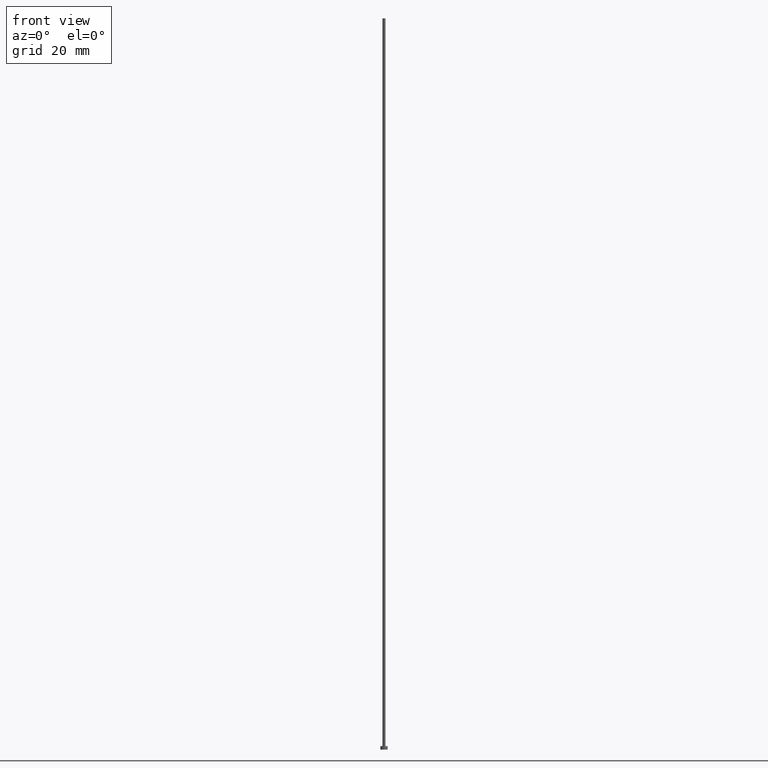
[diagram: clean part render]
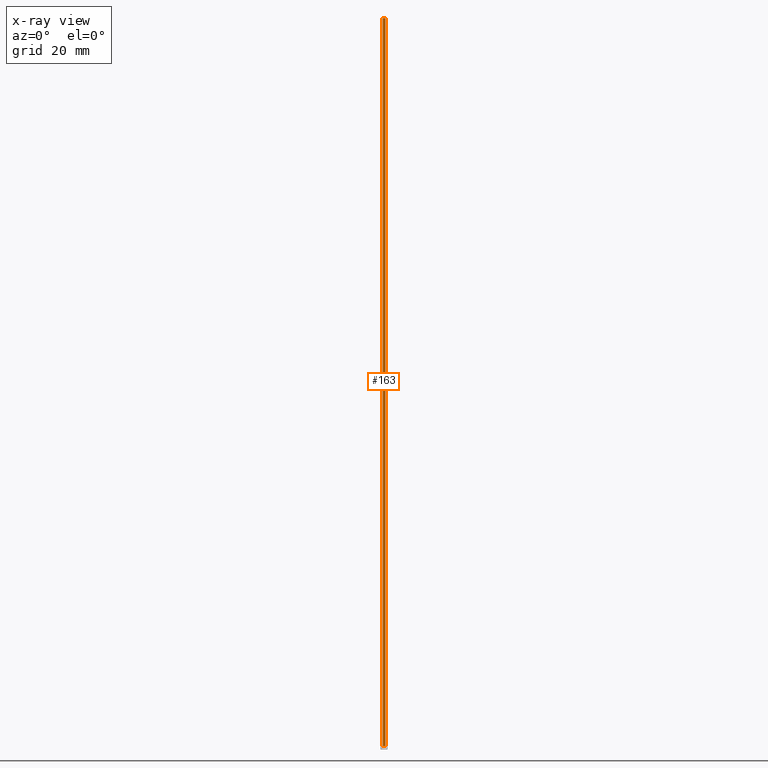
[diagram: x-ray — body ghosted, one internal face saturated and labeled with its STEP entity id]
A machine part, front view, then the same camera in x-ray: the body is ghosted and one INTERNAL B-rep face — a face not visible from any outside direction — is saturated and labeled: STEP entity #163.
In plain terms, the highlighted cylindrical surface (edge-blend (fillet) strip) has radius 0.5 mm, axis along (-0, -0, -1).
Its self-contained STEP definition (entity closure, byte-faithful):
#7 = DIRECTION ( 'NONE',  ( -1.000000000000000000, 0.000000000000000000, 0.000000000000000000 ) ) ;
#16 = AXIS2_PLACEMENT_3D ( 'NONE', #71, #32, #95 ) ;
#18 = ORIENTED_EDGE ( 'NONE', *, *, #195, .F. ) ;
#26 = CARTESIAN_POINT ( 'NONE',  ( -0.5000000000000000000, 0.000000000000000000, 250.0000000000000000 ) ) ;
#31 = EDGE_CURVE ( 'NONE', #99, #34, #37, .T. ) ;
#32 = DIRECTION ( 'NONE',  ( 0.000000000000000000, 0.000000000000000000, 1.000000000000000000 ) ) ;
#34 = VERTEX_POINT ( 'NONE', #124 ) ;
#35 = ORIENTED_EDGE ( 'NONE', *, *, #245, .T. ) ;
#37 = LINE ( 'NONE', #243, #116 ) ;
#40 = DIRECTION ( 'NONE',  ( -0.000000000000000000, -0.000000000000000000, -1.000000000000000000 ) ) ;
#60 = DIRECTION ( 'NONE',  ( -0.000000000000000000, -0.000000000000000000, -1.000000000000000000 ) ) ;
#61 = AXIS2_PLACEMENT_3D ( 'NONE', #216, #93, #233 ) ;
#71 = CARTESIAN_POINT ( 'NONE',  ( 0.000000000000000000, 0.000000000000000000, 1.199999999999999956 ) ) ;
#78 = AXIS2_PLACEMENT_3D ( 'NONE', #83, #40, #7 ) ;
#83 = CARTESIAN_POINT ( 'NONE',  ( 0.000000000000000000, 0.000000000000000000, 250.0000000000000000 ) ) ;
#93 = DIRECTION ( 'NONE',  ( 0.000000000000000000, 0.000000000000000000, 1.000000000000000000 ) ) ;
#94 = EDGE_CURVE ( 'NONE', #184, #104, #208, .T. ) ;
#95 = DIRECTION ( 'NONE',  ( 1.000000000000000000, 0.000000000000000000, 0.000000000000000000 ) ) ;
#96 = ORIENTED_EDGE ( 'NONE', *, *, #94, .F. ) ;
#99 = VERTEX_POINT ( 'NONE', #249 ) ;
#104 = VERTEX_POINT ( 'NONE', #149 ) ;
#116 = VECTOR ( 'NONE', #60, 1000.000000000000000 ) ;
#117 = ORIENTED_EDGE ( 'NONE', *, *, #31, .T. ) ;
#124 = CARTESIAN_POINT ( 'NONE',  ( 0.5000000000000000000, 6.123233995736764803E-17, 1.199999999999999956 ) ) ;
#148 = FACE_OUTER_BOUND ( 'NONE', #157, .T. ) ;
#149 = CARTESIAN_POINT ( 'NONE',  ( -0.5000000000000000000, 0.000000000000000000, 1.199999999999999956 ) ) ;
#157 = EDGE_LOOP ( 'NONE', ( #18, #117, #35, #96 ) ) ;
#163 = ADVANCED_FACE ( 'NONE', ( #148 ), #211, .T. ) ;
#168 = DIRECTION ( 'NONE',  ( -0.000000000000000000, -0.000000000000000000, -1.000000000000000000 ) ) ;
#184 = VERTEX_POINT ( 'NONE', #207 ) ;
#195 = EDGE_CURVE ( 'NONE', #99, #184, #209, .T. ) ;
#207 = CARTESIAN_POINT ( 'NONE',  ( -0.5000000000000000000, 0.000000000000000000, 250.0000000000000000 ) ) ;
#208 = LINE ( 'NONE', #26, #251 ) ;
#209 = CIRCLE ( 'NONE', #61, 0.5000000000000000000 ) ;
#211 = CYLINDRICAL_SURFACE ( 'NONE', #78, 0.5000000000000000000 ) ;
#216 = CARTESIAN_POINT ( 'NONE',  ( 0.000000000000000000, 0.000000000000000000, 250.0000000000000000 ) ) ;
#233 = DIRECTION ( 'NONE',  ( 1.000000000000000000, 0.000000000000000000, 0.000000000000000000 ) ) ;
#234 = CIRCLE ( 'NONE', #16, 0.5000000000000000000 ) ;
#243 = CARTESIAN_POINT ( 'NONE',  ( 0.5000000000000000000, 6.123233995736764803E-17, 250.0000000000000000 ) ) ;
#245 = EDGE_CURVE ( 'NONE', #34, #104, #234, .T. ) ;
#249 = CARTESIAN_POINT ( 'NONE',  ( 0.5000000000000000000, 6.123233995736764803E-17, 250.0000000000000000 ) ) ;
#251 = VECTOR ( 'NONE', #168, 1000.000000000000000 ) ;